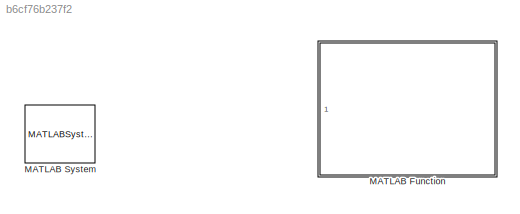
MODEL slx_b6cf76b237f2
KIND model
CONFIG AbsTol = auto
CONFIG EnableMultiTasking = off
CONFIG FixedStep = auto
CONFIG MaxStep = auto
CONFIG MinStep = auto
CONFIG RelTol = 1e-3
CONFIG SampleTimeConstraint = Unconstrained
CONFIG Solver = VariableStepAuto
CONFIG SolverName = VariableStepAuto
CONFIG StartTime = 0.0
CONFIG StopTime = 10.0
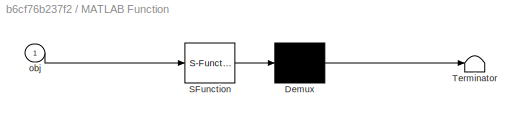
BLOCK [SubSystem] MATLAB Function
  ErrorFcn = Stateflow.Translate.translate
  PermitHierarchicalResolution = ExplicitOnly
  Ports = [1]
  RequestExecContextInheritance = off
  SFBlockType = MATLAB Function
  TreatAsAtomicUnit = on
BLOCK [Demux] MATLAB Function/ Demux 
  Outputs = 1
  Ports = [1, 1]
BLOCK [S-Function] MATLAB Function/ SFunction 
  EnableBusSupport = off
  FunctionName = sf_sfun
  PortCounts = [1 1]
  Ports = [1, 1]
  SFcnIsStateOwnerBlock = off
  SFunctionDeploymentMode = off
  Tag = Stateflow S-Function 2
BLOCK [Terminator] MATLAB Function/ Terminator 
BLOCK [Inport] MATLAB Function/obj
BLOCK [MATLABSystem] MATLAB System
  Bias = 0.1
  Gain = 1.5
  MaskDisplay = disp('shumshing');\nport_label('input',1,'u');\nport_label('output',1,'y');
  MaskType = shumshing
  Ports = [1, 1]
  SimulateUsing = Code generation
  System = shumshing
CHART MATLAB Function states=1 transitions=1
  STATE_LABEL 'eML_blk_kernel()'
  STATE_LABEL 'SCRIPT:\n        function          OX_constantPressureBlowdown(obj)\n\n            mDot             = obj.input.design.mDotox;\n            T                = obj.input.(obj.inputTag).Tinit;\n            \n            V                = obj.tank.v;\n            mTank            = obj.tank.m;\n            P                = IC.P;\n            n                = IC.n;\n            Cd               = obj.input...<+1179ch>'
CHART  states=0 transitions=0
